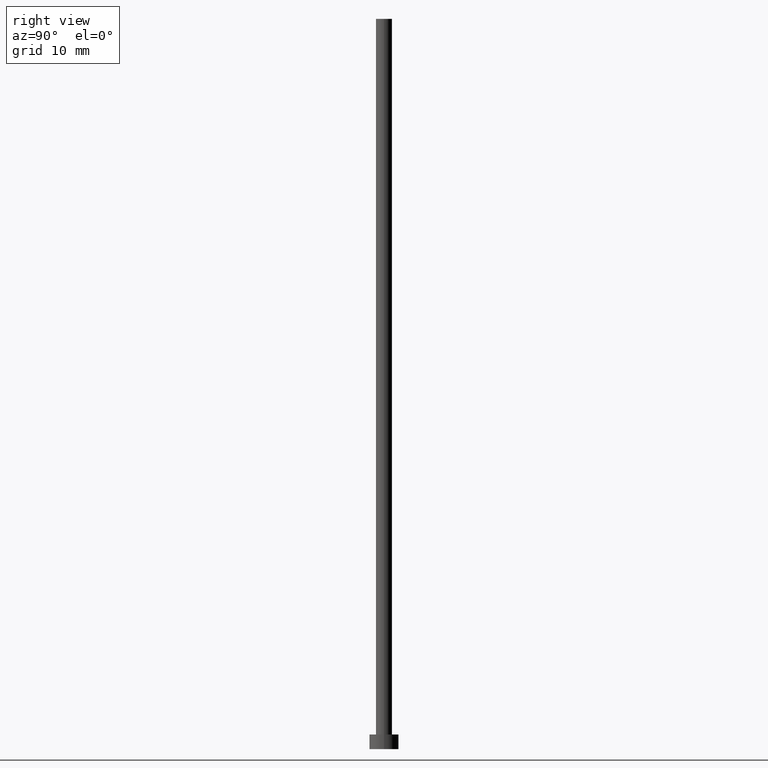
[diagram: clean part render]
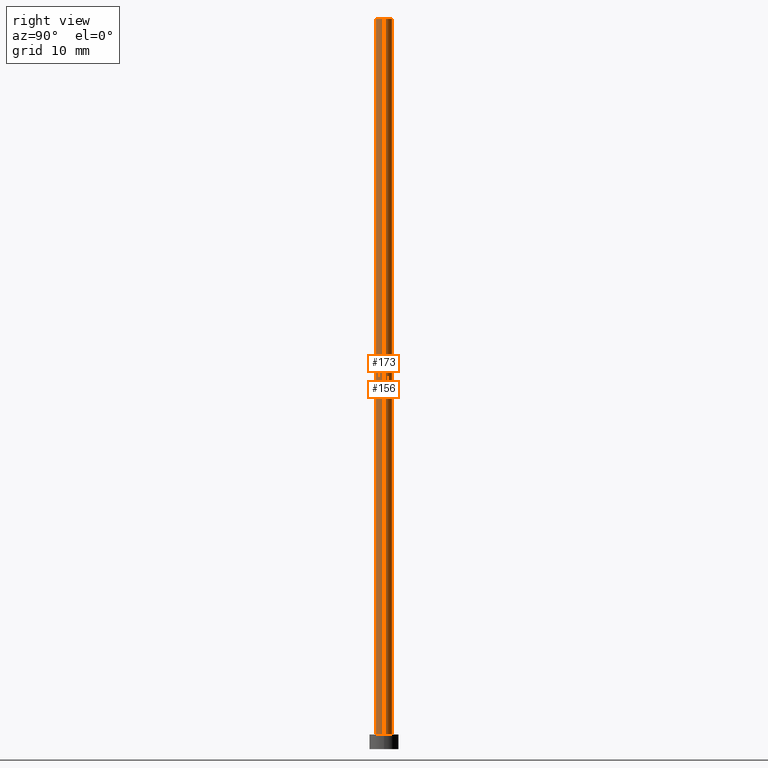
[diagram: same view with one multi-face feature highlighted, each face labeled with its STEP entity id]
A machine part, right view. The highlighted faces form ONE feature: a constant-radius fillet chain: 2 tangent blend faces with common blend radius 1.1 mm. The faces share edges in the B-rep.
Their STEP definitions:
[1] entity #156 (Cylinder):
#4 = CIRCLE ( 'NONE', #210, 1.100000000000000089 ) ;
#11 = EDGE_LOOP ( 'NONE', ( #59, #247, #78, #143 ) ) ;
#21 = EDGE_CURVE ( 'NONE', #26, #137, #4, .T. ) ;
#26 = VERTEX_POINT ( 'NONE', #121 ) ;
#29 = EDGE_CURVE ( 'NONE', #26, #55, #52, .T. ) ;
#50 = DIRECTION ( 'NONE',  ( 1.000000000000000000, 0.000000000000000000, 0.000000000000000000 ) ) ;
#52 = LINE ( 'NONE', #123, #146 ) ;
#55 = VERTEX_POINT ( 'NONE', #150 ) ;
#57 = CARTESIAN_POINT ( 'NONE',  ( -1.100000000000000089, 0.000000000000000000, 2.000000000000000000 ) ) ;
#59 = ORIENTED_EDGE ( 'NONE', *, *, #21, .F. ) ;
#66 = CARTESIAN_POINT ( 'NONE',  ( 0.000000000000000000, 0.000000000000000000, 100.0000000000000000 ) ) ;
#74 = VECTOR ( 'NONE', #178, 1000.000000000000000 ) ;
#78 = ORIENTED_EDGE ( 'NONE', *, *, #195, .T. ) ;
#83 = CIRCLE ( 'NONE', #154, 1.100000000000000089 ) ;
#109 = DIRECTION ( 'NONE',  ( -0.000000000000000000, -0.000000000000000000, -1.000000000000000000 ) ) ;
#121 = CARTESIAN_POINT ( 'NONE',  ( 1.100000000000000089, 1.347111479062088503E-16, 100.0000000000000000 ) ) ;
#123 = CARTESIAN_POINT ( 'NONE',  ( 1.100000000000000089, 1.347111479062088503E-16, 100.0000000000000000 ) ) ;
#126 = DIRECTION ( 'NONE',  ( -1.000000000000000000, 0.000000000000000000, 0.000000000000000000 ) ) ;
#129 = AXIS2_PLACEMENT_3D ( 'NONE', #171, #109, #126 ) ;
#130 = CYLINDRICAL_SURFACE ( 'NONE', #129, 1.100000000000000089 ) ;
#133 = CARTESIAN_POINT ( 'NONE',  ( 0.000000000000000000, 0.000000000000000000, 2.000000000000000000 ) ) ;
#137 = VERTEX_POINT ( 'NONE', #248 ) ;
#141 = DIRECTION ( 'NONE',  ( 0.000000000000000000, 0.000000000000000000, 1.000000000000000000 ) ) ;
#143 = ORIENTED_EDGE ( 'NONE', *, *, #219, .F. ) ;
#146 = VECTOR ( 'NONE', #206, 1000.000000000000000 ) ;
#150 = CARTESIAN_POINT ( 'NONE',  ( 1.100000000000000089, 1.347111479062088503E-16, 2.000000000000000000 ) ) ;
#151 = VERTEX_POINT ( 'NONE', #57 ) ;
#154 = AXIS2_PLACEMENT_3D ( 'NONE', #133, #216, #155 ) ;
#155 = DIRECTION ( 'NONE',  ( 1.000000000000000000, 0.000000000000000000, 0.000000000000000000 ) ) ;
#156 = ADVANCED_FACE ( 'NONE', ( #191 ), #130, .T. ) ;
#157 = LINE ( 'NONE', #160, #74 ) ;
#160 = CARTESIAN_POINT ( 'NONE',  ( -1.100000000000000089, 0.000000000000000000, 100.0000000000000000 ) ) ;
#171 = CARTESIAN_POINT ( 'NONE',  ( 0.000000000000000000, 0.000000000000000000, 100.0000000000000000 ) ) ;
#178 = DIRECTION ( 'NONE',  ( -0.000000000000000000, -0.000000000000000000, -1.000000000000000000 ) ) ;
#191 = FACE_OUTER_BOUND ( 'NONE', #11, .T. ) ;
#195 = EDGE_CURVE ( 'NONE', #55, #151, #83, .T. ) ;
#206 = DIRECTION ( 'NONE',  ( -0.000000000000000000, -0.000000000000000000, -1.000000000000000000 ) ) ;
#210 = AXIS2_PLACEMENT_3D ( 'NONE', #66, #141, #50 ) ;
#216 = DIRECTION ( 'NONE',  ( 0.000000000000000000, 0.000000000000000000, 1.000000000000000000 ) ) ;
#219 = EDGE_CURVE ( 'NONE', #137, #151, #157, .T. ) ;
#247 = ORIENTED_EDGE ( 'NONE', *, *, #29, .T. ) ;
#248 = CARTESIAN_POINT ( 'NONE',  ( -1.100000000000000089, 0.000000000000000000, 100.0000000000000000 ) ) ;
[2] entity #173 (Cylinder):
#9 = AXIS2_PLACEMENT_3D ( 'NONE', #250, #18, #252 ) ;
#18 = DIRECTION ( 'NONE',  ( -0.000000000000000000, -0.000000000000000000, -1.000000000000000000 ) ) ;
#26 = VERTEX_POINT ( 'NONE', #121 ) ;
#29 = EDGE_CURVE ( 'NONE', #26, #55, #52, .T. ) ;
#37 = FACE_OUTER_BOUND ( 'NONE', #81, .T. ) ;
#40 = AXIS2_PLACEMENT_3D ( 'NONE', #174, #54, #86 ) ;
#52 = LINE ( 'NONE', #123, #146 ) ;
#54 = DIRECTION ( 'NONE',  ( 0.000000000000000000, 0.000000000000000000, 1.000000000000000000 ) ) ;
#55 = VERTEX_POINT ( 'NONE', #150 ) ;
#57 = CARTESIAN_POINT ( 'NONE',  ( -1.100000000000000089, 0.000000000000000000, 2.000000000000000000 ) ) ;
#65 = CIRCLE ( 'NONE', #40, 1.100000000000000089 ) ;
#68 = ORIENTED_EDGE ( 'NONE', *, *, #219, .T. ) ;
#71 = DIRECTION ( 'NONE',  ( 0.000000000000000000, 0.000000000000000000, 1.000000000000000000 ) ) ;
#74 = VECTOR ( 'NONE', #178, 1000.000000000000000 ) ;
#81 = EDGE_LOOP ( 'NONE', ( #233, #186, #68, #245 ) ) ;
#86 = DIRECTION ( 'NONE',  ( 1.000000000000000000, 0.000000000000000000, 0.000000000000000000 ) ) ;
#87 = EDGE_CURVE ( 'NONE', #137, #26, #65, .T. ) ;
#89 = CYLINDRICAL_SURFACE ( 'NONE', #9, 1.100000000000000089 ) ;
#121 = CARTESIAN_POINT ( 'NONE',  ( 1.100000000000000089, 1.347111479062088503E-16, 100.0000000000000000 ) ) ;
#123 = CARTESIAN_POINT ( 'NONE',  ( 1.100000000000000089, 1.347111479062088503E-16, 100.0000000000000000 ) ) ;
#137 = VERTEX_POINT ( 'NONE', #248 ) ;
#146 = VECTOR ( 'NONE', #206, 1000.000000000000000 ) ;
#150 = CARTESIAN_POINT ( 'NONE',  ( 1.100000000000000089, 1.347111479062088503E-16, 2.000000000000000000 ) ) ;
#151 = VERTEX_POINT ( 'NONE', #57 ) ;
#157 = LINE ( 'NONE', #160, #74 ) ;
#160 = CARTESIAN_POINT ( 'NONE',  ( -1.100000000000000089, 0.000000000000000000, 100.0000000000000000 ) ) ;
#161 = AXIS2_PLACEMENT_3D ( 'NONE', #251, #71, #194 ) ;
#173 = ADVANCED_FACE ( 'NONE', ( #37 ), #89, .T. ) ;
#174 = CARTESIAN_POINT ( 'NONE',  ( 0.000000000000000000, 0.000000000000000000, 100.0000000000000000 ) ) ;
#178 = DIRECTION ( 'NONE',  ( -0.000000000000000000, -0.000000000000000000, -1.000000000000000000 ) ) ;
#186 = ORIENTED_EDGE ( 'NONE', *, *, #87, .F. ) ;
#194 = DIRECTION ( 'NONE',  ( 1.000000000000000000, 0.000000000000000000, 0.000000000000000000 ) ) ;
#197 = CIRCLE ( 'NONE', #161, 1.100000000000000089 ) ;
#206 = DIRECTION ( 'NONE',  ( -0.000000000000000000, -0.000000000000000000, -1.000000000000000000 ) ) ;
#219 = EDGE_CURVE ( 'NONE', #137, #151, #157, .T. ) ;
#229 = EDGE_CURVE ( 'NONE', #151, #55, #197, .T. ) ;
#233 = ORIENTED_EDGE ( 'NONE', *, *, #29, .F. ) ;
#245 = ORIENTED_EDGE ( 'NONE', *, *, #229, .T. ) ;
#248 = CARTESIAN_POINT ( 'NONE',  ( -1.100000000000000089, 0.000000000000000000, 100.0000000000000000 ) ) ;
#250 = CARTESIAN_POINT ( 'NONE',  ( 0.000000000000000000, 0.000000000000000000, 100.0000000000000000 ) ) ;
#251 = CARTESIAN_POINT ( 'NONE',  ( 0.000000000000000000, 0.000000000000000000, 2.000000000000000000 ) ) ;
#252 = DIRECTION ( 'NONE',  ( -1.000000000000000000, 0.000000000000000000, 0.000000000000000000 ) ) ;